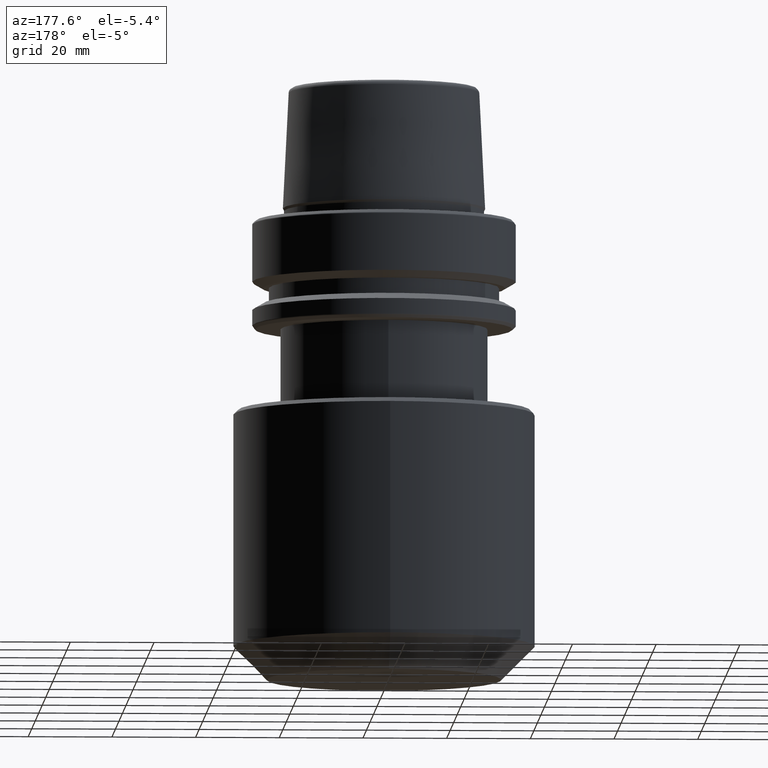
[diagram: clean part render]
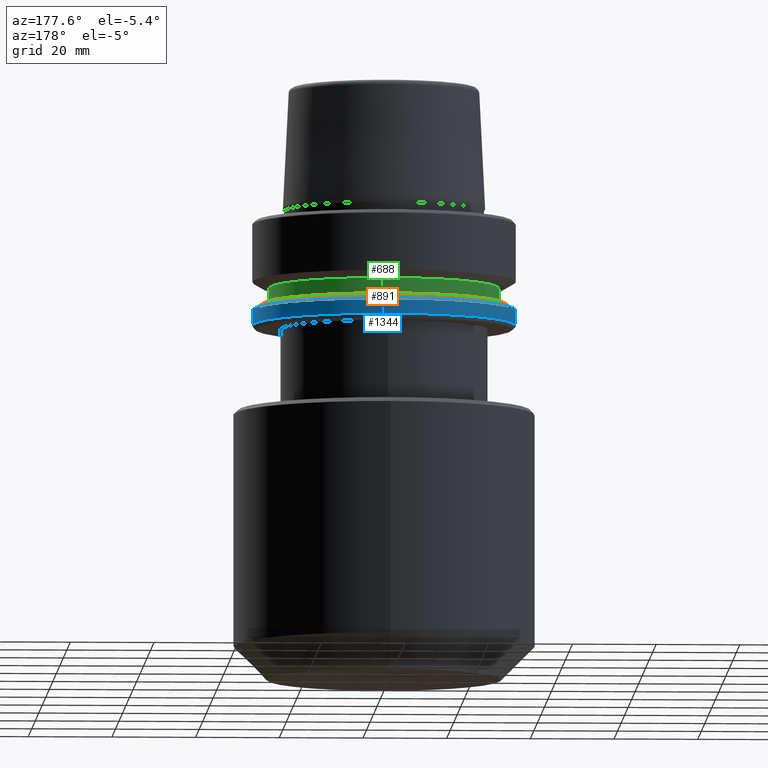
[diagram: same view with three faces highlighted in distinct colors, each labeled with its STEP entity id]
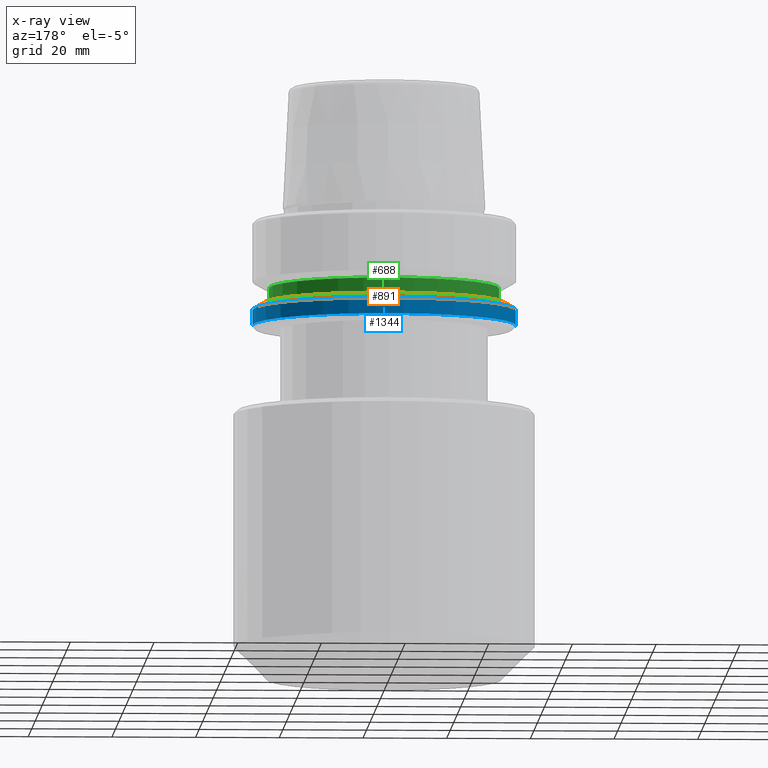
[diagram: x-ray of the same camera — body ghosted, the three highlighted faces saturated]
A machine part, auxiliary view with three faces highlighted in distinct colors.
The next image is the same camera in x-ray (body ghosted, the three faces saturated) — at least one of them is partly hidden behind the body in this view.
Their STEP definitions:

[orange] entity #891 — the highlighted conical surface has half-angle 60 deg.
#42 = ORIENTED_EDGE ( 'NONE', *, *, #1156, .F. ) ;
#56 = CARTESIAN_POINT ( 'NONE',  ( -28.94089653438085100, 0.0000000000000000000, -19.90000000000001600 ) ) ;
#93 = DIRECTION ( 'NONE',  ( 0.0000000000000000000, 0.0000000000000000000, -1.000000000000000000 ) ) ;
#97 = ORIENTED_EDGE ( 'NONE', *, *, #1301, .T. ) ;
#98 = LINE ( 'NONE', #669, #1160 ) ;
#124 = EDGE_LOOP ( 'NONE', ( #42, #1327, #97, #237 ) ) ;
#165 = DIRECTION ( 'NONE',  ( -1.000000000000000000, 0.0000000000000000000, 0.0000000000000000000 ) ) ;
#196 = EDGE_CURVE ( 'NONE', #1247, #918, #1199, .T. ) ;
#224 = AXIS2_PLACEMENT_3D ( 'NONE', #337, #844, #251 ) ;
#225 = CARTESIAN_POINT ( 'NONE',  ( -31.50000000000000000, 0.0000000000000000000, -21.37749907475931700 ) ) ;
#237 = ORIENTED_EDGE ( 'NONE', *, *, #196, .F. ) ;
#251 = DIRECTION ( 'NONE',  ( 1.000000000000000000, 0.0000000000000000000, 0.0000000000000000000 ) ) ;
#337 = CARTESIAN_POINT ( 'NONE',  ( 0.0000000000000000000, 0.0000000000000000000, -21.37749907475931700 ) ) ;
#405 = DIRECTION ( 'NONE',  ( -0.0000000000000000000, -0.0000000000000000000, 1.000000000000000000 ) ) ;
#431 = FACE_OUTER_BOUND ( 'NONE', #124, .T. ) ;
#454 = DIRECTION ( 'NONE',  ( 0.8660254037844410400, 1.060575238724909700E-016, -0.4999999999999958400 ) ) ;
#530 = CARTESIAN_POINT ( 'NONE',  ( 31.50000000000000000, 0.0000000000000000000, -21.37749907475931700 ) ) ;
#579 = EDGE_CURVE ( 'NONE', #1003, #836, #98, .T. ) ;
#625 = CIRCLE ( 'NONE', #224, 31.50000000000000000 ) ;
#669 = CARTESIAN_POINT ( 'NONE',  ( 31.50000000000000000, 3.857637417314162700E-015, -21.37749907475931700 ) ) ;
#717 = DIRECTION ( 'NONE',  ( 1.000000000000000000, 0.0000000000000000000, 0.0000000000000000000 ) ) ;
#794 = CARTESIAN_POINT ( 'NONE',  ( 0.0000000000000000000, 0.0000000000000000000, -21.37749907475931700 ) ) ;
#816 = AXIS2_PLACEMENT_3D ( 'NONE', #794, #93, #165 ) ;
#836 = VERTEX_POINT ( 'NONE', #530 ) ;
#844 = DIRECTION ( 'NONE',  ( -0.0000000000000000000, -0.0000000000000000000, 1.000000000000000000 ) ) ;
#891 = ADVANCED_FACE ( 'NONE', ( #431 ), #1088, .T. ) ;
#899 = AXIS2_PLACEMENT_3D ( 'NONE', #1033, #405, #717 ) ;
#918 = VERTEX_POINT ( 'NONE', #1113 ) ;
#1003 = VERTEX_POINT ( 'NONE', #1202 ) ;
#1033 = CARTESIAN_POINT ( 'NONE',  ( 0.0000000000000000000, 0.0000000000000000000, -19.90000000000001600 ) ) ;
#1088 = CONICAL_SURFACE ( 'NONE', #816, 31.50000000000000000, 1.047197551196602500 ) ;
#1113 = CARTESIAN_POINT ( 'NONE',  ( -31.50000000000000000, 3.857637417314162700E-015, -21.37749907475931700 ) ) ;
#1155 = CIRCLE ( 'NONE', #899, 28.94089653438085100 ) ;
#1156 = EDGE_CURVE ( 'NONE', #1003, #1247, #1155, .T. ) ;
#1160 = VECTOR ( 'NONE', #454, 1000.000000000000100 ) ;
#1184 = VECTOR ( 'NONE', #1290, 1000.000000000000100 ) ;
#1199 = LINE ( 'NONE', #225, #1184 ) ;
#1202 = CARTESIAN_POINT ( 'NONE',  ( 28.94089653438085100, 3.700937523921292900E-015, -19.90000000000001600 ) ) ;
#1247 = VERTEX_POINT ( 'NONE', #56 ) ;
#1290 = DIRECTION ( 'NONE',  ( -0.8660254037844410400, 0.0000000000000000000, -0.4999999999999958400 ) ) ;
#1301 = EDGE_CURVE ( 'NONE', #836, #918, #625, .T. ) ;
#1327 = ORIENTED_EDGE ( 'NONE', *, *, #579, .T. ) ;

[blue] entity #1344 — the highlighted cylindrical surface (partial cylindrical patch) has radius 31.5 mm, axis along (-0, -0, 1).
#13 = VECTOR ( 'NONE', #1268, 1000.000000000000000 ) ;
#23 = VERTEX_POINT ( 'NONE', #51 ) ;
#51 = CARTESIAN_POINT ( 'NONE',  ( 31.50000000000000000, 0.0000000000000000000, -25.03431457505077200 ) ) ;
#95 = EDGE_LOOP ( 'NONE', ( #673, #696, #304, #432 ) ) ;
#151 = AXIS2_PLACEMENT_3D ( 'NONE', #271, #1162, #317 ) ;
#224 = AXIS2_PLACEMENT_3D ( 'NONE', #337, #844, #251 ) ;
#251 = DIRECTION ( 'NONE',  ( 1.000000000000000000, 0.0000000000000000000, 0.0000000000000000000 ) ) ;
#271 = CARTESIAN_POINT ( 'NONE',  ( 0.0000000000000000000, 0.0000000000000000000, -25.03431457505077200 ) ) ;
#304 = ORIENTED_EDGE ( 'NONE', *, *, #1301, .F. ) ;
#317 = DIRECTION ( 'NONE',  ( 1.000000000000000000, 0.0000000000000000000, 0.0000000000000000000 ) ) ;
#335 = EDGE_CURVE ( 'NONE', #932, #918, #776, .T. ) ;
#337 = CARTESIAN_POINT ( 'NONE',  ( 0.0000000000000000000, 0.0000000000000000000, -21.37749907475931700 ) ) ;
#392 = DIRECTION ( 'NONE',  ( -0.0000000000000000000, -0.0000000000000000000, 1.000000000000000000 ) ) ;
#403 = CARTESIAN_POINT ( 'NONE',  ( -31.50000000000000000, 3.857637417314162700E-015, 78.96908074195309300 ) ) ;
#432 = ORIENTED_EDGE ( 'NONE', *, *, #1389, .F. ) ;
#517 = CYLINDRICAL_SURFACE ( 'NONE', #1116, 31.50000000000000000 ) ;
#530 = CARTESIAN_POINT ( 'NONE',  ( 31.50000000000000000, 0.0000000000000000000, -21.37749907475931700 ) ) ;
#625 = CIRCLE ( 'NONE', #224, 31.50000000000000000 ) ;
#640 = DIRECTION ( 'NONE',  ( 1.000000000000000000, 0.0000000000000000000, 0.0000000000000000000 ) ) ;
#648 = CIRCLE ( 'NONE', #151, 31.50000000000000000 ) ;
#673 = ORIENTED_EDGE ( 'NONE', *, *, #1258, .T. ) ;
#696 = ORIENTED_EDGE ( 'NONE', *, *, #335, .T. ) ;
#776 = LINE ( 'NONE', #403, #13 ) ;
#836 = VERTEX_POINT ( 'NONE', #530 ) ;
#844 = DIRECTION ( 'NONE',  ( -0.0000000000000000000, -0.0000000000000000000, 1.000000000000000000 ) ) ;
#918 = VERTEX_POINT ( 'NONE', #1113 ) ;
#932 = VERTEX_POINT ( 'NONE', #1220 ) ;
#938 = DIRECTION ( 'NONE',  ( -0.0000000000000000000, -0.0000000000000000000, 1.000000000000000000 ) ) ;
#999 = FACE_OUTER_BOUND ( 'NONE', #95, .T. ) ;
#1113 = CARTESIAN_POINT ( 'NONE',  ( -31.50000000000000000, 3.857637417314162700E-015, -21.37749907475931700 ) ) ;
#1116 = AXIS2_PLACEMENT_3D ( 'NONE', #1164, #938, #640 ) ;
#1133 = CARTESIAN_POINT ( 'NONE',  ( 31.50000000000000000, 0.0000000000000000000, 78.96908074195309300 ) ) ;
#1162 = DIRECTION ( 'NONE',  ( -0.0000000000000000000, -0.0000000000000000000, 1.000000000000000000 ) ) ;
#1164 = CARTESIAN_POINT ( 'NONE',  ( 0.0000000000000000000, 0.0000000000000000000, 78.96908074195309300 ) ) ;
#1170 = VECTOR ( 'NONE', #392, 1000.000000000000000 ) ;
#1186 = LINE ( 'NONE', #1133, #1170 ) ;
#1220 = CARTESIAN_POINT ( 'NONE',  ( -31.50000000000000000, 3.857637417314161900E-015, -25.03431457505077200 ) ) ;
#1258 = EDGE_CURVE ( 'NONE', #23, #932, #648, .T. ) ;
#1268 = DIRECTION ( 'NONE',  ( -0.0000000000000000000, -0.0000000000000000000, 1.000000000000000000 ) ) ;
#1301 = EDGE_CURVE ( 'NONE', #836, #918, #625, .T. ) ;
#1344 = ADVANCED_FACE ( 'NONE', ( #999 ), #517, .T. ) ;
#1389 = EDGE_CURVE ( 'NONE', #23, #836, #1186, .T. ) ;

[green] entity #688 — the highlighted cylindrical surface (partial cylindrical patch) has radius 27.5 mm, axis along (-0, -0, 1).
#67 = CYLINDRICAL_SURFACE ( 'NONE', #722, 27.49999999999999600 ) ;
#144 = VERTEX_POINT ( 'NONE', #491 ) ;
#206 = CARTESIAN_POINT ( 'NONE',  ( 27.49999999999999600, 0.0000000000000000000, -16.10000000000001600 ) ) ;
#207 = CARTESIAN_POINT ( 'NONE',  ( 0.0000000000000000000, 0.0000000000000000000, -16.10000000000001600 ) ) ;
#216 = EDGE_CURVE ( 'NONE', #332, #313, #715, .T. ) ;
#268 = EDGE_CURVE ( 'NONE', #332, #295, #1063, .T. ) ;
#291 = AXIS2_PLACEMENT_3D ( 'NONE', #1275, #1386, #641 ) ;
#295 = VERTEX_POINT ( 'NONE', #1377 ) ;
#313 = VERTEX_POINT ( 'NONE', #206 ) ;
#332 = VERTEX_POINT ( 'NONE', #1151 ) ;
#377 = ORIENTED_EDGE ( 'NONE', *, *, #629, .F. ) ;
#418 = DIRECTION ( 'NONE',  ( -0.0000000000000000000, -0.0000000000000000000, 1.000000000000000000 ) ) ;
#452 = CARTESIAN_POINT ( 'NONE',  ( -27.49999999999999600, 3.367778697655220900E-015, 78.96908074195309300 ) ) ;
#491 = CARTESIAN_POINT ( 'NONE',  ( -27.49999999999999600, 3.367778697655220900E-015, -16.10000000000001600 ) ) ;
#526 = ORIENTED_EDGE ( 'NONE', *, *, #216, .F. ) ;
#569 = ORIENTED_EDGE ( 'NONE', *, *, #268, .T. ) ;
#609 = AXIS2_PLACEMENT_3D ( 'NONE', #207, #418, #1165 ) ;
#629 = EDGE_CURVE ( 'NONE', #313, #144, #1280, .T. ) ;
#637 = FACE_OUTER_BOUND ( 'NONE', #1348, .T. ) ;
#641 = DIRECTION ( 'NONE',  ( 1.000000000000000000, 0.0000000000000000000, 0.0000000000000000000 ) ) ;
#670 = ORIENTED_EDGE ( 'NONE', *, *, #1082, .T. ) ;
#678 = VECTOR ( 'NONE', #1062, 1000.000000000000000 ) ;
#688 = ADVANCED_FACE ( 'NONE', ( #637 ), #67, .T. ) ;
#707 = DIRECTION ( 'NONE',  ( -0.0000000000000000000, -0.0000000000000000000, 1.000000000000000000 ) ) ;
#715 = LINE ( 'NONE', #1137, #1010 ) ;
#722 = AXIS2_PLACEMENT_3D ( 'NONE', #1004, #1058, #1292 ) ;
#1004 = CARTESIAN_POINT ( 'NONE',  ( 0.0000000000000000000, 0.0000000000000000000, 78.96908074195309300 ) ) ;
#1010 = VECTOR ( 'NONE', #707, 1000.000000000000000 ) ;
#1058 = DIRECTION ( 'NONE',  ( -0.0000000000000000000, -0.0000000000000000000, 1.000000000000000000 ) ) ;
#1062 = DIRECTION ( 'NONE',  ( -0.0000000000000000000, -0.0000000000000000000, 1.000000000000000000 ) ) ;
#1063 = CIRCLE ( 'NONE', #291, 27.49999999999999600 ) ;
#1082 = EDGE_CURVE ( 'NONE', #295, #144, #1363, .T. ) ;
#1137 = CARTESIAN_POINT ( 'NONE',  ( 27.49999999999999600, 0.0000000000000000000, 78.96908074195309300 ) ) ;
#1151 = CARTESIAN_POINT ( 'NONE',  ( 27.49999999999999600, 0.0000000000000000000, -19.90000000000001600 ) ) ;
#1165 = DIRECTION ( 'NONE',  ( 1.000000000000000000, 0.0000000000000000000, 0.0000000000000000000 ) ) ;
#1275 = CARTESIAN_POINT ( 'NONE',  ( 0.0000000000000000000, 0.0000000000000000000, -19.90000000000001600 ) ) ;
#1280 = CIRCLE ( 'NONE', #609, 27.49999999999999600 ) ;
#1292 = DIRECTION ( 'NONE',  ( 1.000000000000000000, 0.0000000000000000000, 0.0000000000000000000 ) ) ;
#1348 = EDGE_LOOP ( 'NONE', ( #569, #670, #377, #526 ) ) ;
#1363 = LINE ( 'NONE', #452, #678 ) ;
#1377 = CARTESIAN_POINT ( 'NONE',  ( -27.49999999999999600, 3.367778697655220900E-015, -19.90000000000001600 ) ) ;
#1386 = DIRECTION ( 'NONE',  ( -0.0000000000000000000, -0.0000000000000000000, 1.000000000000000000 ) ) ;